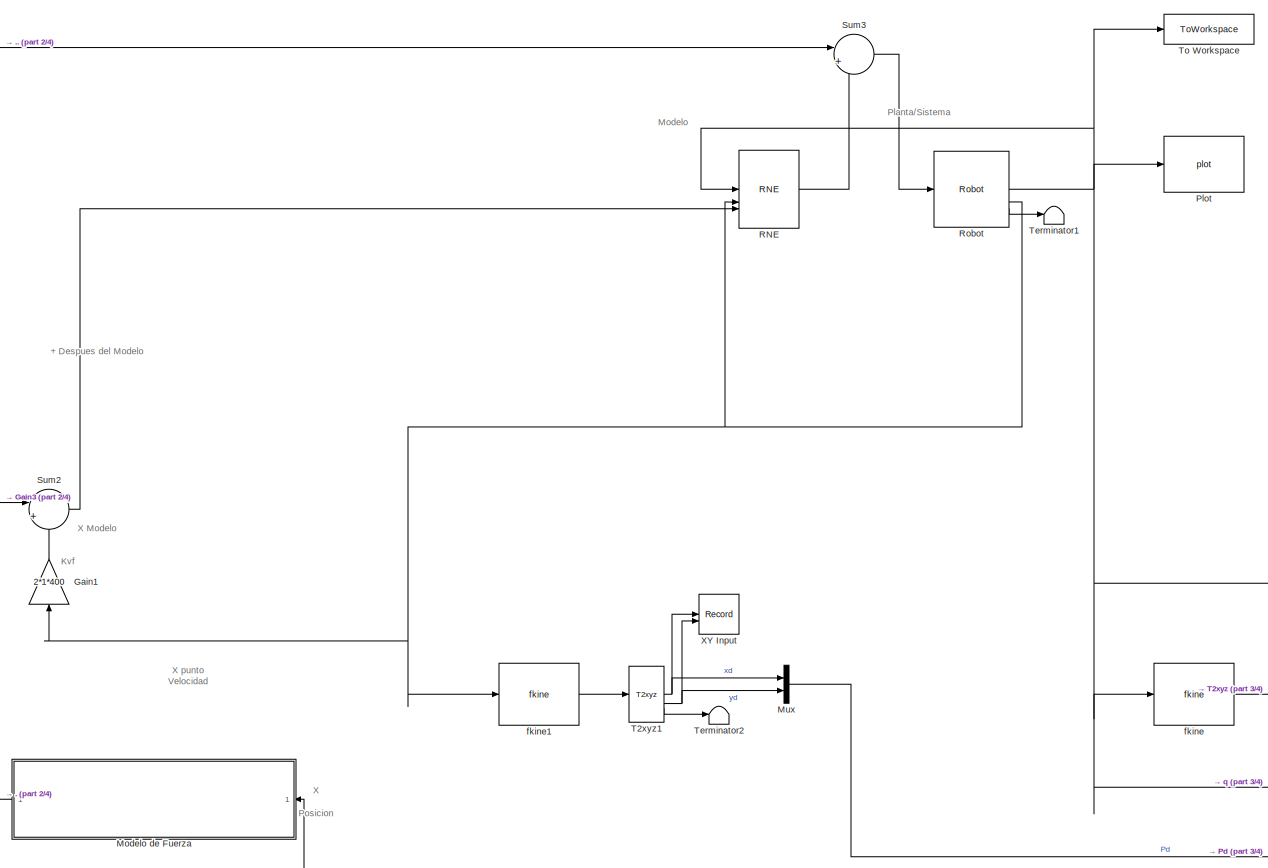
[diagram: root canvas - part 1/4, center side, full height]
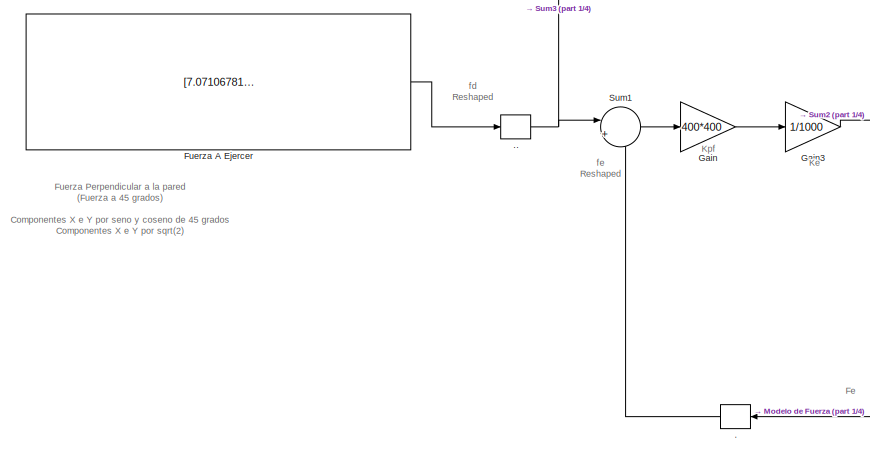
[diagram: root canvas - part 2/4, middle left region]
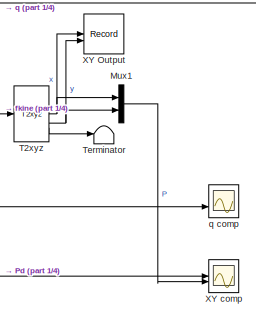
[diagram: root canvas - part 3/4, bottom right region]
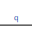
[diagram: root canvas - part 4/4, bottom right region]
MODEL slx_2e35a23a7d6a
KIND model
CONFIG AbsTol = auto
CONFIG EnableMultiTasking = off
CONFIG FixedStep = auto
CONFIG MaxStep = auto
CONFIG MinStep = auto
CONFIG RelTol = 1e-3
CONFIG SampleTimeConstraint = Unconstrained
CONFIG SolverName = VariableStepAuto
CONFIG StartTime = 0.0
CONFIG StopTime = 10.0
BLOCK [Reshape] .
  NameLocation = top
  OutputDimensionality = Column vector (2-D)
BLOCK [Reshape] ..
  OutputDimensionality = Column vector (2-D)
BLOCK [Constant] Fuerza A Ejercer
  Value = [7.0710678118654752440084436210485 7.0710678118654752440084436210485]
BLOCK [Gain] Gain
  Gain = 400*400
BLOCK [Gain] Gain1
  Gain = 2*1*400
  NameLocation = right
BLOCK [Gain] Gain3
  Gain = 1/1000
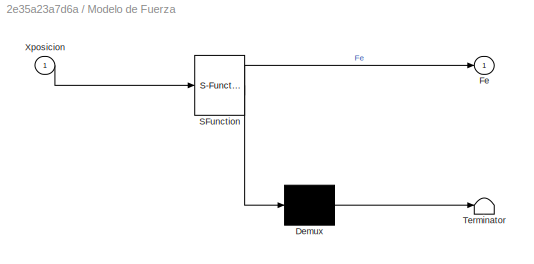
BLOCK [SubSystem] Modelo de Fuerza
  ErrorFcn = Stateflow.Translate.translate
  PermitHierarchicalResolution = ExplicitOnly
  SFBlockType = MATLAB Function
  TreatAsAtomicUnit = on
BLOCK [Demux] Modelo de Fuerza/ Demux 
  Outputs = 1
BLOCK [S-Function] Modelo de Fuerza/ SFunction 
  EnableBusSupport = on
  FunctionName = sf_sfun
  PortCounts = [1 2]
  SFcnIsStateOwnerBlock = off
  SFunctionDeploymentMode = off
  Tag = Stateflow S-Function 4
BLOCK [Terminator] Modelo de Fuerza/ Terminator 
BLOCK [Outport] Modelo de Fuerza/Fe
BLOCK [Inport] Modelo de Fuerza/Xposicion
BLOCK [Mux] Mux
  DisplayOption = bar
  Inputs = 2
BLOCK [Mux] Mux1
  DisplayOption = bar
  Inputs = 2
BLOCK [Reference] Plot  REF=roblocks/Arm/plot  (lib defined in mdl_2a292b13c81b, mdl_69400f8cfe22, +12 more)
  SourceBlock = roblocks/Arm/plot
BLOCK [Reference] RNE  REF=roblocks/Arm/RNE  (lib defined in mdl_2a292b13c81b, mdl_69400f8cfe22, +12 more)
  SourceBlock = roblocks/Arm/RNE
BLOCK [Reference] Robot  REF=roblocks/Arm/Robot  (lib defined in mdl_2a292b13c81b, mdl_69400f8cfe22, +12 more)
  SourceBlock = roblocks/Arm/Robot
BLOCK [Sum] Sum1
  Inputs = |+-
BLOCK [Sum] Sum2
  Inputs = |+-
BLOCK [Sum] Sum3
  Inputs = |++
BLOCK [Reference] T2xyz  REF=roblocks/Toolbox/T2xyz  (lib defined in mdl_2a292b13c81b, mdl_69400f8cfe22, +12 more)
  SourceBlock = roblocks/Toolbox/T2xyz
BLOCK [Reference] T2xyz1  REF=roblocks/Toolbox/T2xyz  (lib defined in mdl_2a292b13c81b, mdl_69400f8cfe22, +12 more)
  SourceBlock = roblocks/Toolbox/T2xyz
BLOCK [Terminator] Terminator
BLOCK [Terminator] Terminator1
BLOCK [Terminator] Terminator2
BLOCK [ToWorkspace] To Workspace
  FixptAsFi = on
  MaxDataPoints = inf
  SampleTime = -1
  SaveFormat = Timeseries
  VariableName = q_out
BLOCK [Record] XY Input
  CompatibilityTag = XY
  FileSettingsInternal = {"entries":[{"content":{"excelSettings":{"content":{},"type":"Streamout.ExcelSettings"}},"type":"Streamout.FileSettingStorage","uuid":""}],"packageUris":["http:\/\/schema.mathworks.com\/mf0\/streamout_blocks\/R2020a"],"version":"1.0"}
  Layout = [1 1]
  SignalsInternal = {"entries":[{"content":{"signals":[{"content":{"blockPath":[],"dimensions":[1],"domain":"","lineColor":"#a2142f","plots":[1],"port":1,"sid":[""],"signalID":133,"signalName":"xd"},"type":"RecordBlkView.Signal","uuid":""},{"content":{"blockPath":[],"dimensions":[1],"domain":"","lineColor":"#139fff","plots":[1],"port":2,"sid":[""],"signalID":137,"signalName":"yd"},"type":"RecordBlkView.Signal","uuid"...<+150ch>
  VisualizationBindings = {"xyplotplugin":{"info":[{"series":[{"bindingParametersList":[{"parameter":"X-Axis","signalID":133,"signalName":"xd"},{"parameter":"Y-Axis","signalID":137,"signalName":"yd"}],"seriesID":50006}],"subplotID":1}]}}
  st = -1
BLOCK [Record] XY Output
  CompatibilityTag = XY
  FileSettingsInternal = {"entries":[{"content":{"excelSettings":{"content":{},"type":"Streamout.ExcelSettings"}},"type":"Streamout.FileSettingStorage","uuid":""}],"packageUris":["http:\/\/schema.mathworks.com\/mf0\/streamout_blocks\/R2020a"],"version":"1.0"}
  Layout = [1 1]
  SignalsInternal = {"entries":[{"content":{"signals":[{"content":{"blockPath":[],"dimensions":[1],"domain":"","lineColor":"#a2142f","plots":[1],"port":1,"sid":[""],"signalID":141,"signalName":"x"},"type":"RecordBlkView.Signal","uuid":""},{"content":{"blockPath":[],"dimensions":[1],"domain":"","lineColor":"#139fff","plots":[1],"port":2,"sid":[""],"signalID":145,"signalName":"y"},"type":"RecordBlkView.Signal","uuid":"...<+148ch>
  VisualizationBindings = {"xyplotplugin":{"info":[{"series":[{"bindingParametersList":[{"parameter":"X-Axis","signalID":141,"signalName":"x"},{"parameter":"Y-Axis","signalID":145,"signalName":"y"}],"seriesID":38420}],"subplotID":1}]}}
  st = -1
BLOCK [Scope] XY comp
  Floating = off
  NumInputPorts = 2
  ScopeSpecificationString = Simulink.scopes.TimeScopeBlockCfg('CurrentConfiguration', extmgr.ConfigurationSet(extmgr.Configuration('Core','General UI',true),extmgr.Configuration('Core','Source UI',true),extmgr.Configuration('Sources','WiredSimulink',true,'DataLoggingVariableName','ScopeData1'),extmgr.Configuration('Visuals','Time Domain',true,'SerializedDisplays',{struct('MinYLimReal','-1.25001','MaxYLimReal','1.25007','YLab...<+1387ch>
BLOCK [Reference] fkine  REF=roblocks/Arm/fkine  (lib defined in mdl_2a292b13c81b, mdl_69400f8cfe22, +12 more)
  SourceBlock = roblocks/Arm/fkine
BLOCK [Reference] fkine1  REF=roblocks/Arm/fkine  (lib defined in mdl_2a292b13c81b, mdl_69400f8cfe22, +12 more)
  SourceBlock = roblocks/Arm/fkine
BLOCK [Scope] q comp
  Floating = off
  NumInputPorts = 2
  ScopeSpecificationString = Simulink.scopes.TimeScopeBlockCfg('CurrentConfiguration', extmgr.ConfigurationSet(extmgr.Configuration('Core','General UI',true),extmgr.Configuration('Core','Source UI',true),extmgr.Configuration('Sources','WiredSimulink',true),extmgr.Configuration('Visuals','Time Domain',true,'SerializedDisplays',{struct('MinYLimReal','-2.55262','MaxYLimReal','2.02964','YLabelReal','','MinYLimMag','0.00000','MaxY...<+1347ch>
ANNOTATION (root): + Despues del Modelo
ANNOTATION (root): Fe
ANNOTATION (root): Fuerza Perpendicular a la pared (Fuerza a 45 grados) Componentes X e Y por seno y coseno de 45 grados Componentes X e Y por sqrt(2) Fuerza dato = 10N Fuerza en ejes = 10.sen o cos (45)
ANNOTATION (root): Ke
ANNOTATION (root): Kpf
ANNOTATION (root): Kvf
ANNOTATION (root): Modelo
ANNOTATION (root): Planta/Sistema
ANNOTATION (root): X Posicion
ANNOTATION (root): X Modelo
ANNOTATION (root): X punto Velocidad
ANNOTATION (root): fd Reshaped
ANNOTATION (root): fe Reshaped
NET ..:1 -> Sum1:1, Sum3:1
LINE .:1 -> Sum1:2
LINE Fuerza A Ejercer:1 -> ..:1
LINE Gain1:1 -> Sum2:2
LINE Gain3:1 -> Sum2:1
LINE Gain:1 -> Gain3:1
LINE Modelo de Fuerza:1 -> .:1
LINE Mux1:1 -> XY comp:2
LINE Mux:1 -> XY comp:1
LINE RNE:1 -> Sum3:2
NET Robot:1 -> Modelo de Fuerza:1, Plot:1, RNE:1, To Workspace:1, fkine:1, q comp:2
NET Robot:2 -> Gain1:1, RNE:2, fkine1:1
LINE Robot:3 -> Terminator1:1
LINE Sum1:1 -> Gain:1
LINE Sum2:1 -> RNE:3
LINE Sum3:1 -> Robot:1
NET T2xyz1:1 -> Mux:1, XY Input:1
NET T2xyz1:2 -> Mux:2, XY Input:2
LINE T2xyz1:3 -> Terminator2:1
NET T2xyz:1 -> Mux1:1, XY Output:1
NET T2xyz:2 -> Mux1:2, XY Output:2
LINE T2xyz:3 -> Terminator:1
LINE fkine1:1 -> T2xyz1:1
LINE fkine:1 -> T2xyz:1
note: NET lines group one-source signal fan-out (src -> all destinations, sorted); 1:1 wires keep LINE
CHART Modelo de Fuerza states=1 transitions=1
  STATE_LABEL 'eML_blk_kernel()'
  STATE_LABEL 'SCRIPT:\n%Input: Vector de coordenadas bidimensionales Xposicion como entrada\n%Output: Vector de fuerzas bidimensionales Fe \n\n%Description: Evalar la posición del punto representado por las coordenadas \n%Xposicion con respecto a la pared \n%En base a ello, calcula la fuerza correspondiente.\n\nfunction Fe = modeloFuerzaCalc(Xposicion)\n\nkEnv = 1000; %N/mm\nejeY = Xposicion(2);\nejeX = Xposicion(1);\n\n%Par...<+714ch>'
CHART  states=0 transitions=0
